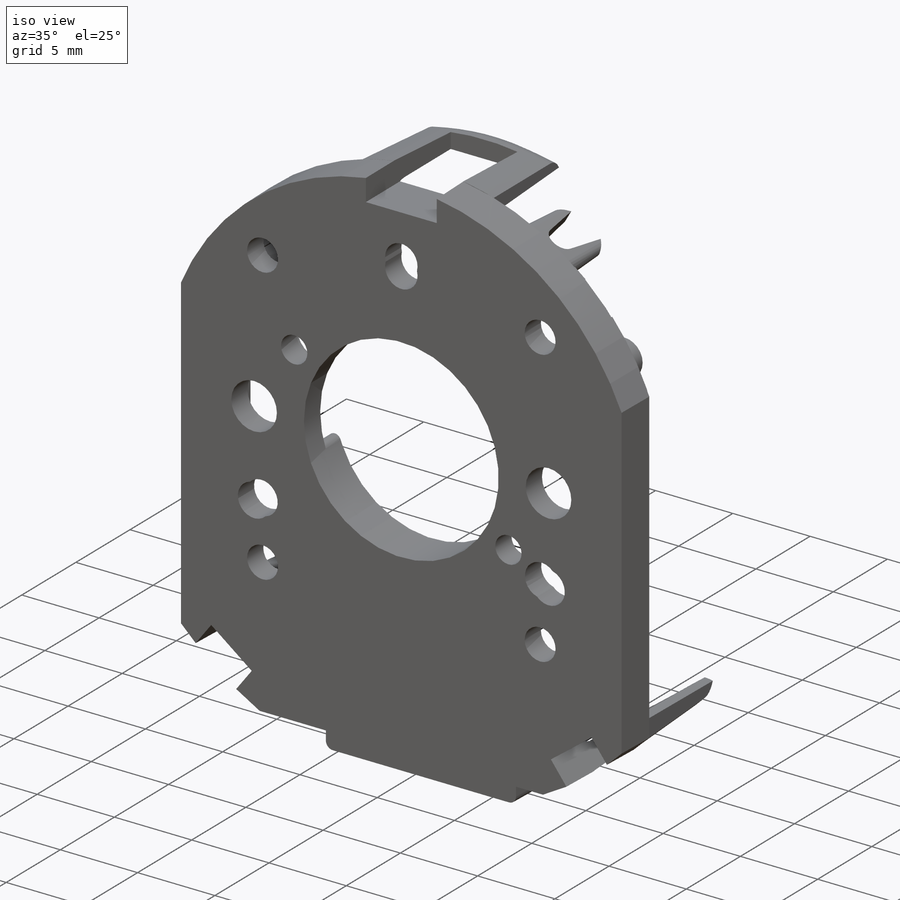
[diagram: iso view]
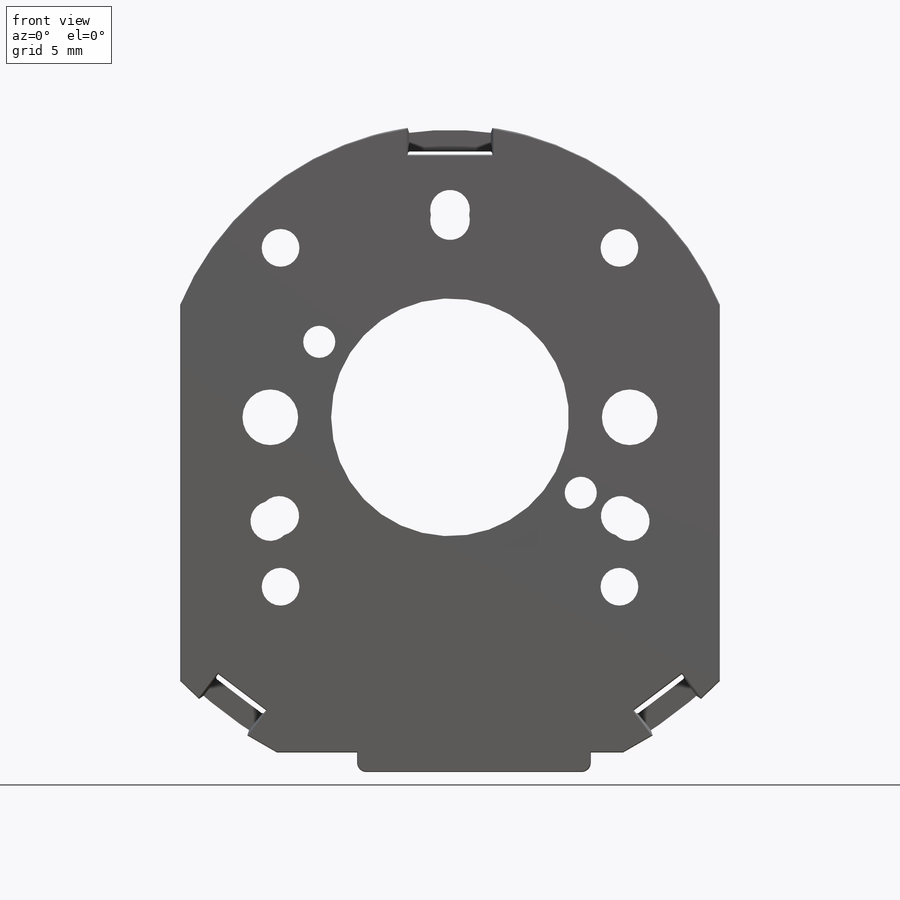
[diagram: front view]
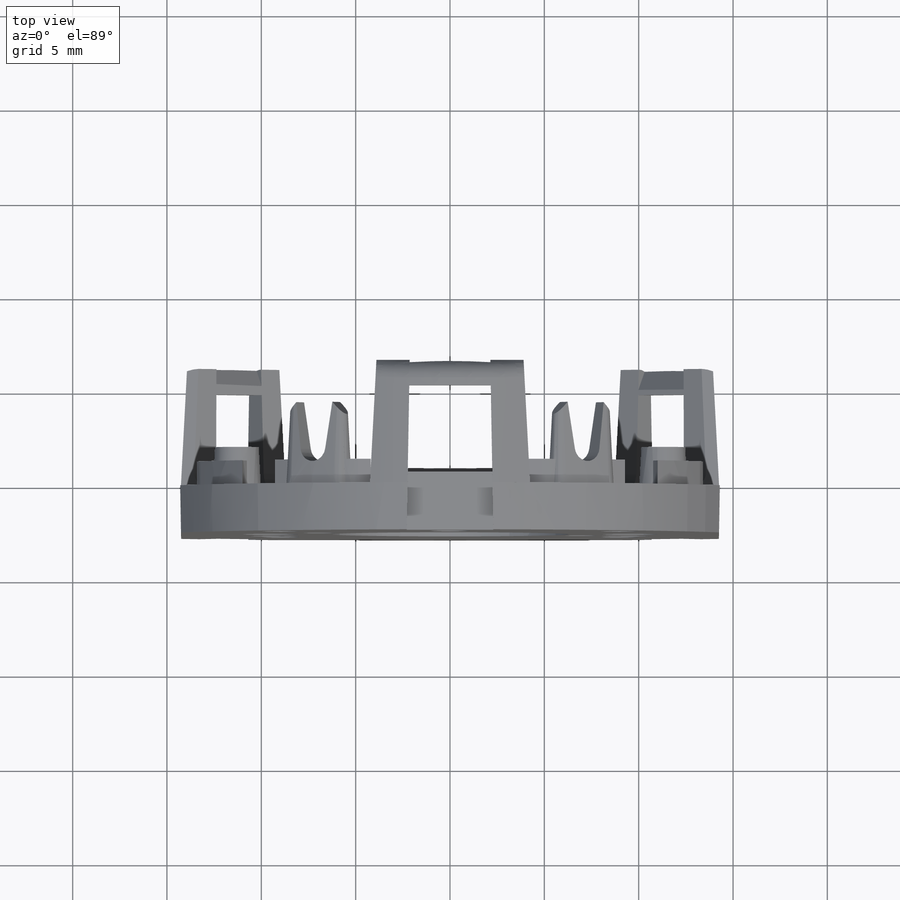
[diagram: top view]
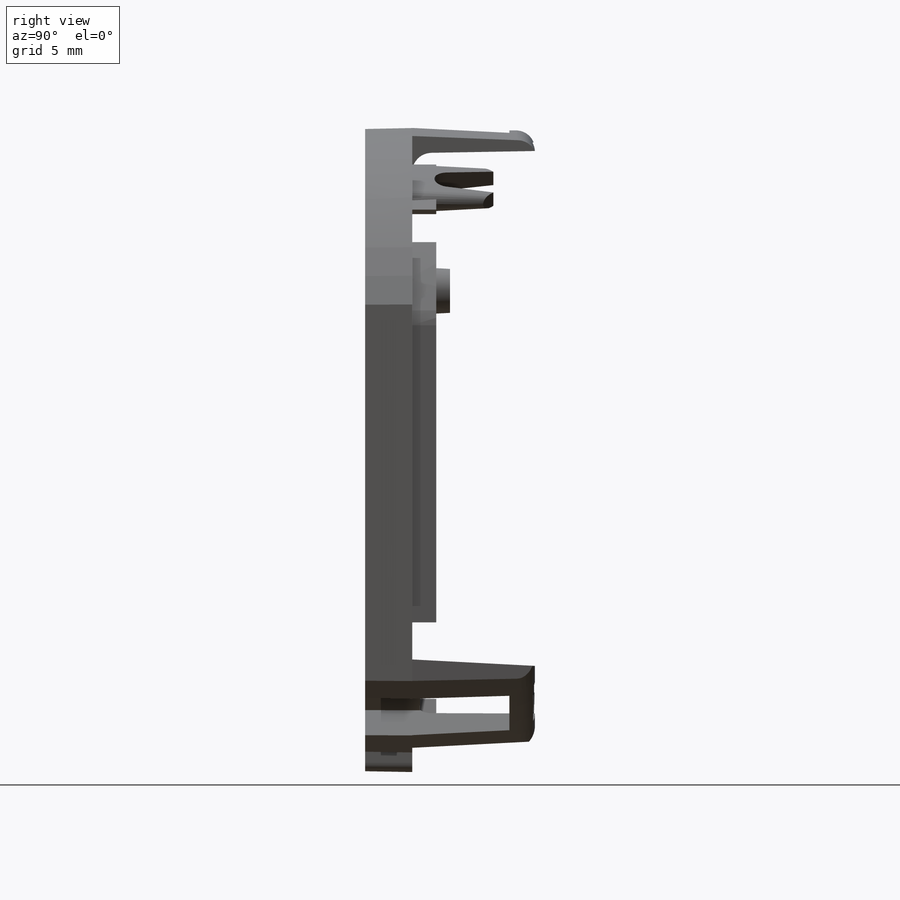
[diagram: right view]
SOLIDWORKS PART (.sldprt)
format: sldprt  version: not decoded by parser v0  size: 1,981,952 bytes
history: native  units: mm
features: sketch x30, cut_extrude x24, plane x5, extrude x5, fillet x3, material x1, mirror x1 (+14 scaffold rows collapsed)
feature tree (83):
  scaffold x14  (default folders/planes/origin — collapsed)
  material  "Material <not specified>"
  plane  "Plane2"  Offset=1.5mm
  sketch  "Sketch1"  dims[c1.D1=3.0mm c1.D5=12.4mm c1.D2=13.5mm c2.D1=3.65mm c2.D2=3.65mm c2.D3=14.15mm c2.D7=26.3mm c3.D2=3.65mm c3.D4=29.21mm c4.D2=3.6576mm c4.D3=15.5mm c4.D4=15.5mm c5.D3=~15.500911mm c5.D1=3.85mm c6.D3=3.0mm c6.D4=40.0mm c7.D3=15.5mm c7.D6=~22.708547mm c7.D4=41.0mm c8.D6=~19.843101mm c8.D4=20.0mm c8.D9=~1.458972mm c8.D8=~1.458972mm c8.D7=0.5mm c9.D8=0.5mm c9.D6=0.5mm c9.D7=0.5mm c9.D2=20.4mm c9.D3=10.541mm c9.D4=10.541mm c9.D5=10.541mm c10.D6=10.541mm c10.D7=13.5mm c10.D8=13.5mm c10.D9=13.5mm c10.D10=21.082mm c11.D10=~90.062128deg c12.D10=5.2mm c12.D4=14.15mm c12.D6=21.05mm c12.D1=29.972mm c12.D2=17.32mm c12.D3=16.15mm c13.D1=28.6mm c13.D2=17.54mm c13.D5=14.3mm c14.D1=14.3mm c14.D6=18.85mm c14.D7=8.51mm c14.D8=8.51mm c14.D9=0.56mm c15.D7=7.51mm c15.D8=7.51mm c15.D2=7.47mm c16.D8=~1.099807mm c16.D6=4.93mm c16.D3=~1.242218deg c16.D1=~178.758147deg c17.D3=0.65mm]
  extrude  "Main body"  Depth=2.77mm
  sketch  "Sketch15"  dims[c1.D1=~13.483362mm c1.D2=2.0mm c1.D4=2.0mm c1.D5=2.0mm c1.D6=35.5mm c2.D2=2.0mm c2.D5=17.75mm c2.D4=38.4mm c3.D5=28.8mm c3.D6=2.0mm c3.D7=35.1mm c3.D2=7.2mm c3.D3=13.1mm c4.D2=7.15mm c4.D3=13.0mm c5.D2=2.1mm c5.D3=13.4mm c5.D4=1.1mm c5.D5=1.75mm c5.D1=26.8mm c6.D2=13.4mm c6.D3=16.44mm c6.D1=0.254mm c7.D2=0.5mm c7.D3=0.254mm c7.D4=0.5mm c7.D5=0.254mm c7.D6=0.5mm c7.D1=1.2mm c8.D2=1.2mm c8.D1=1.1mm]
  cut_extrude  "outside lip"  Depth=2.5mm
  sketch  "Sketch5"  dims[D1=2.8702mm D2=15.748mm D3=10.4775mm]
  sketch  "Sketch6"  dims[c1.D2=1.0mm c1.D3=1.0mm c2.D2=1.0mm c2.D4=1.2mm c2.D5=5.486mm c2.D6=1.0mm c2.D7=1.0mm c2.D1=1.0mm c3.D2=17.3mm c3.D1=1.0mm c3.D3=2.0mm c4.D2=18.0mm c4.D4=7.0mm c4.D10=2.25mm c4.D11=2.25mm c4.D1=2.0mm c4.D3=1.0mm c5.D1=1.2mm c5.D2=1.2mm c6.D1=1.0mm c6.D2=1.0mm c7.D1=1.0mm c7.D2=1.0mm c7.D3=1.0mm c7.D5=1.0mm c7.D6=1.0mm c7.D7=1.0mm c7.D8=1.0mm c7.D9=1.0mm c8.D5=1.0mm c8.D6=1.0mm c8.D4=1.0mm c9.D5=1.0mm c9.D6=1.0mm c9.D1=1.0mm c9.D2=1.0mm]
  cut_extrude  "recess for elex"  [1 undecoded]
  sketch  "Sketch44"
  sketch  "Sketch34"  dims[c1.D1=31.0mm c1.D3=40.0mm c1.D4=37.2mm c1.D2=0.5mm c1.D6=~19.111067mm c2.D3=19.978mm c2.D1=6.0mm c2.D2=4.0mm c2.D4=~18.905882mm c3.D2=4.0mm c3.D4=0.2mm c4.D2=14.0mm c4.D4=7.0mm c4.D5=4.0mm c5.D4=4.0mm c5.D6=4.0mm c5.D5=0.75mm c6.D6=0.75mm c6.D5=0.5mm c7.D6=0.25mm c7.D2=0.3mm c7.D3=0.12mm c8.D6=0.24mm c8.D7=0.24mm]
  extrude  "Snapsprings "  Depth=6.5mm
  sketch  "Sketch50"  dims[D1=0.2mm D2=0.2mm]
  cut_extrude  "Room for spring-fillets"  Depth=10mm
  extrude  "Draft-springs inside"  [1 undecoded]
  fillet  "1 mm base radius all springs"  Radius=1mm
  sketch  "Sketch37"  dims[c1.D1=0.7mm c1.D2=3.2mm c2.D1=0.2mm c2.D3=1.8mm c3.D1=0.2mm c3.D2=0.2mm c3.D3=0.2mm c3.D4=0.2mm c4.D1=0.5mm c4.D2=0.5mm c5.D1=0.2mm c5.D2=0.2mm c6.D1=0.1mm c6.D2=0.1mm c7.D1=0.06mm]
  cut_extrude  "Cut-Lower springs for latch"  Depth=1.35mm
  sketch  "Sketch16"  dims[c1.D1=7.75mm c1.D2=14.36mm c1.D3=7.23mm c1.D4=7.23mm c2.D3=7.95mm c2.D4=7.2mm c2.D5=7.95mm c2.D1=7.75mm c2.D2=14.36mm c3.D3=3.3mm c3.D1=11.055mm c3.D2=7.01mm]
  sketch  "Sketch35"  dims[c1.D1=~4.179947mm c2.D1=90.0deg c3.D1=4.5mm c3.D2=0.2mm c3.D3=1.7mm c4.D2=0.36mm]
  cut_extrude  "Cut-upper spring for latch"  Depth=1.35mm
  sketch  "Sketch54"
  plane  "Plane4"
  sketch  "Sketch53"
  plane  "Plane5"
  sketch  "Sketch40"  dims[c1.D1=1.3mm c1.D2=0.5mm c2.D1=1.3mm c2.D2=0.5mm c3.D1=1.0mm c3.D2=0.5mm]
  cut_extrude  "upper spring chamfer top"  [1 undecoded]
  fillet  "Fillet14"  Radius=1mm
  sketch  "Sketch20"  dims[c1.D1=2.95mm c1.D3=2.0mm c1.D4=2.0mm c2.D3=2.0mm c2.D5=20.9mm c2.D6=22.0mm c2.D7=2.0066mm c3.D3=~0.863619mm c3.D2=19.05mm c3.D5=~20.72394mm c4.D5=15.0deg c4.D4=10.4521mm]
  cut_extrude  "2+3 +3 Mounting holes"  [1 undecoded]
  sketch  "Sketch23"  dims[D1=15.6mm]
  cut_extrude  "Collar "  Depth=0.7mm
  sketch  "Sketch21"  dims[c1.D1=5.6mm c1.D2=4.0mm c1.D3=4.0mm c1.D4=4.0mm c2.D1=4.0mm c2.D2=5.6mm c2.D3=4.0mm c2.D4=4.0mm c2.D5=5.6mm c3.D1=2.025mm c3.D2=2.025mm c4.D1=~2.248567mm]
  cut_extrude  "Mounting hole recess'es"  Depth=1mm
  cut_extrude  "Dip recess"  Depth=0.8mm
  sketch  "Sketch24"  dims[D1=12.6mm]
  cut_extrude  "12.5 mm cut"  [1 undecoded]
  sketch  "Sketch31"  dims[c1.D3=0.6mm c1.D1=1.4mm c1.D2=5.5mm c1.D4=0.25mm c2.D2=0.25mm c2.D3=8.5mm c3.D2=~3.058845mm]
  cut_extrude  "Cut-for iron behindHall sensor"  Depth=1.2mm
  plane  "Plane1"  Offset=4.5mm
  sketch  "Sketch60"
  cut_extrude  "Cut for header pins"  Depth=1.1mm
  sketch  "Sketch61"
  cut_extrude  "Trimming at above cut"  [1 undecoded]
  extrude  "Draft spring-lock channel"  [1 undecoded]
  extrude  "Draft sides oof springs"  [1 undecoded]
  sketch  "Sketch51"  dims[c1.D1=0.5mm c1.D2=1.3mm c2.D1=1.0mm c2.D2=0.5mm c3.D1=0.5mm c3.D2=1.0mm c3.D3=0.01mm c3.D4=0.01mm c4.D3=0.05mm c4.D1=0.01mm]
  cut_extrude  "chamfer LR spring"  [1 undecoded]
  sketch  "Sketch52"  dims[c1.D1=1.0mm c1.D2=0.5mm c2.D1=1.0mm c2.D2=0.5mm c2.D3=1.0mm c3.D2=0.5mm c3.D3=0.01mm]
  cut_extrude  "chamfer LL spring"  [1 undecoded]
  sketch  "Sketch63"  dims[D1=~0.495055mm]
  cut_extrude  "holes 4x and 2x"  [1 undecoded]
  sketch  "Sketch64"  dims[D1=3.2mm]
  cut_extrude  "screw recess"  [1 undecoded]
  sketch  "Sketch65"  dims[D1=~0.695301mm]
  cut_extrude  "Rcvr hold down posts"  Depth=4.3mm
  plane  "Plane6"
  sketch  "Sketch68"  dims[c1.D1=135.0deg c2.D1=1.5mm c2.D2=2.2mm]
  cut_extrude  "Cut-Extrude2"  Depth=2mm
  mirror  "Mirror1"
  sketch  "Sketch66"  dims[D1=~1.450675mm]
  cut_extrude  "Transmitter hold-down posts"  Depth=2mm
  sketch  "Sketch67"  dims[D1=14.2mm D2=16.2mm]
  cut_extrude  "Cut-Extrude1"  [1 undecoded]
  sketch  "Sketch69"  dims[c1.D1=~14.951179mm c1.D2=12.1mm c2.D1=0.2mm c2.D2=0.2mm c2.D3=6.05mm c3.D3=16.0deg c3.D4=~3.989973mm c4.D4=~41.377803deg c5.D4=~5.815633mm c6.D4=60.0deg c6.D5=6.05mm c7.D5=16.0deg c7.D6=~5.815633mm c8.D6=60.0deg]
  cut_extrude  "Cut-Extrude3"  [1 undecoded]
  fillet  "Fillet15"  Radius=0.4mm
  sketch  "Sketch70"  dims[D1=0.5mm]
  cut_extrude  "Cut-Extrude4"  Depth=0.32mm
decode coverage: 43 of 63 modeling features carry decoded parameters
note: ~ marks probable driven/reference dimensions
note: 14 parameter values undecoded
summary: no parameter record found for 14 features
note: suppression state not decoded; provenance and decode notes live in map.json
